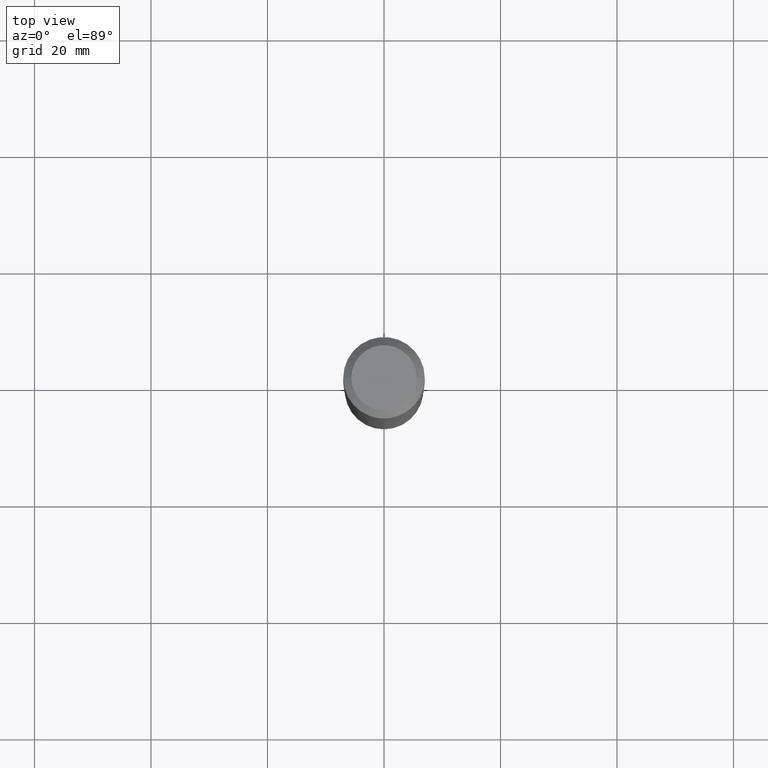
[diagram: clean part render]
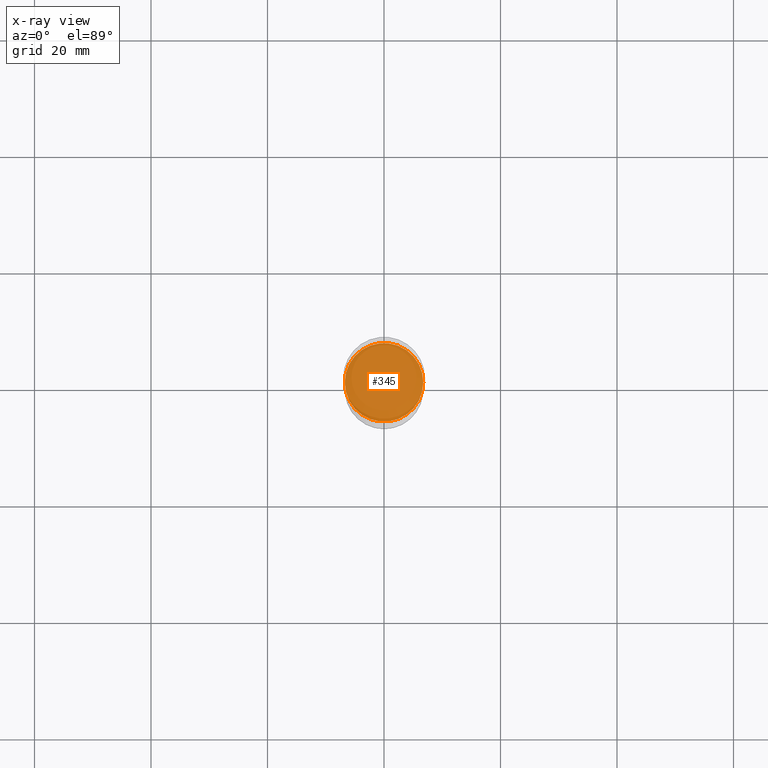
[diagram: x-ray — body ghosted, one internal face saturated and labeled with its STEP entity id]
A machine part, top view, then the same camera in x-ray: the body is ghosted and one INTERNAL B-rep face — a face not visible from any outside direction — is saturated and labeled: STEP entity #345.
In plain terms, the highlighted planar face has unit normal (-0, 0, 1).
Its self-contained STEP definition (entity closure, byte-faithful):
#6 = ORIENTED_EDGE ( 'NONE', *, *, #364, .F. ) ;
#24 = CIRCLE ( 'NONE', #166, 0.2652499999999999858 ) ;
#29 = CARTESIAN_POINT ( 'NONE',  ( 4.525340025845595057E-29, -6.460986217529240299E-15, -1.850499999999999812 ) ) ;
#32 = VERTEX_POINT ( 'NONE', #116 ) ;
#52 = VERTEX_POINT ( 'NONE', #106 ) ;
#55 = CARTESIAN_POINT ( 'NONE',  ( 4.525340025845595057E-29, -6.460986217529240299E-15, -1.850499999999999812 ) ) ;
#68 = FACE_OUTER_BOUND ( 'NONE', #379, .T. ) ;
#102 = CARTESIAN_POINT ( 'NONE',  ( 4.525340025845595057E-29, -6.460986217529240299E-15, -1.850499999999999812 ) ) ;
#106 = CARTESIAN_POINT ( 'NONE',  ( 0.2652499999999999858, -8.313217067785521850E-15, -1.850499999999999812 ) ) ;
#116 = CARTESIAN_POINT ( 'NONE',  ( -0.2652499999999999858, -4.573622383751463456E-15, -1.850499999999999812 ) ) ;
#123 = CIRCLE ( 'NONE', #468, 0.2652499999999999858 ) ;
#148 = EDGE_CURVE ( 'NONE', #52, #32, #24, .T. ) ;
#166 = AXIS2_PLACEMENT_3D ( 'NONE', #102, #185, #315 ) ;
#185 = DIRECTION ( 'NONE',  ( -2.445468806185136597E-29, 3.491481338843145583E-15, 1.000000000000000000 ) ) ;
#188 = DIRECTION ( 'NONE',  ( -2.438088387897960049E-29, 3.491481338843145188E-15, 1.000000000000000000 ) ) ;
#230 = PLANE ( 'NONE',  #336 ) ;
#315 = DIRECTION ( 'NONE',  ( 1.000000000000000000, -6.982962677686265922E-15, 0.000000000000000000 ) ) ;
#336 = AXIS2_PLACEMENT_3D ( 'NONE', #29, #188, #485 ) ;
#345 = ADVANCED_FACE ( 'NONE', ( #68 ), #230, .F. ) ;
#357 = DIRECTION ( 'NONE',  ( -2.445468806185136597E-29, 3.491481338843145583E-15, 1.000000000000000000 ) ) ;
#364 = EDGE_CURVE ( 'NONE', #32, #52, #123, .T. ) ;
#365 = DIRECTION ( 'NONE',  ( 1.000000000000000000, -6.982962677686265922E-15, 0.000000000000000000 ) ) ;
#379 = EDGE_LOOP ( 'NONE', ( #449, #6 ) ) ;
#449 = ORIENTED_EDGE ( 'NONE', *, *, #148, .F. ) ;
#468 = AXIS2_PLACEMENT_3D ( 'NONE', #55, #357, #365 ) ;
#485 = DIRECTION ( 'NONE',  ( 1.000000000000000000, -6.982962677686265922E-15, 4.876176775795935793E-29 ) ) ;